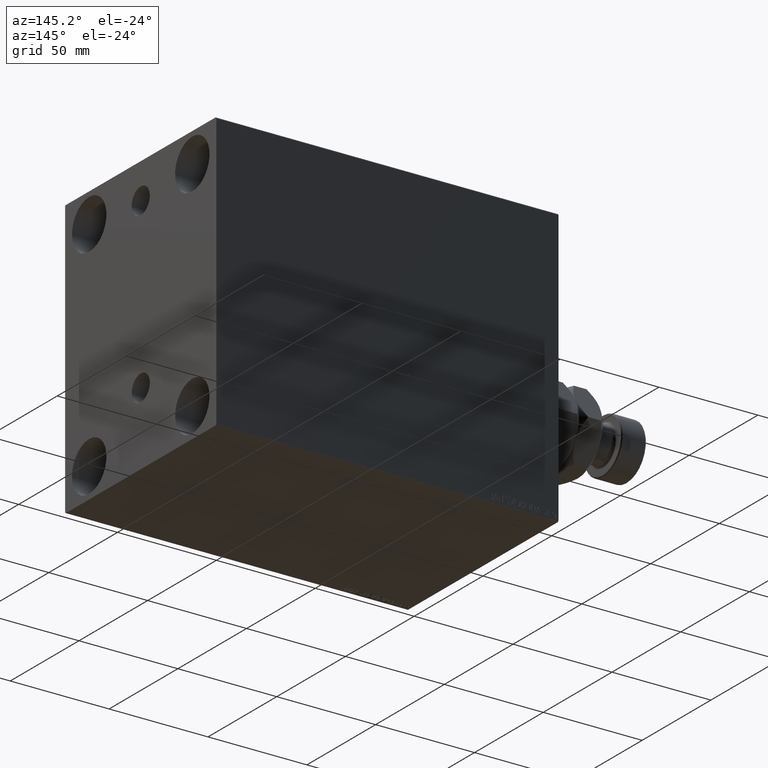
[diagram: clean part render]
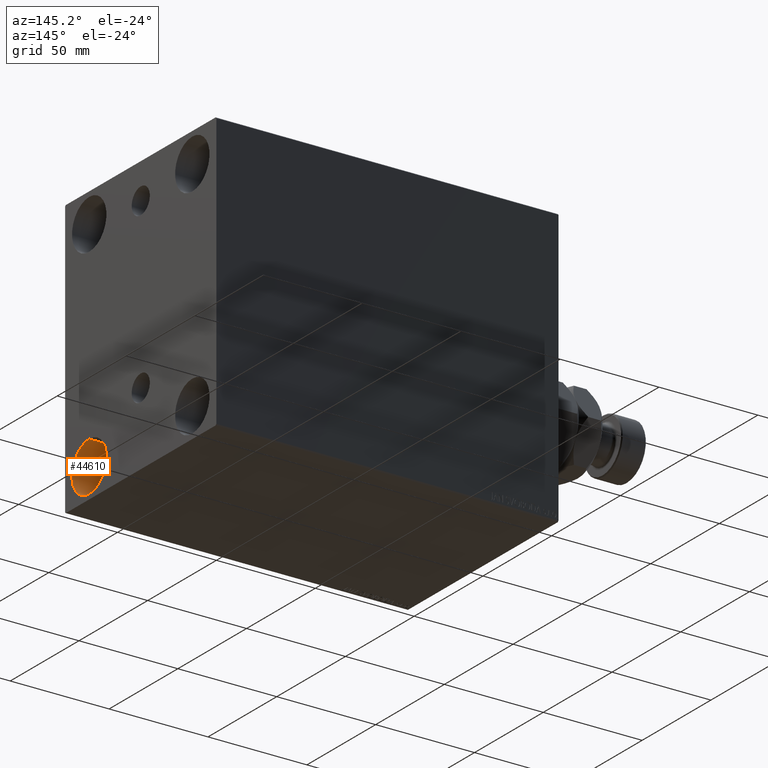
[diagram: same view with one face highlighted and labeled with its STEP entity id]
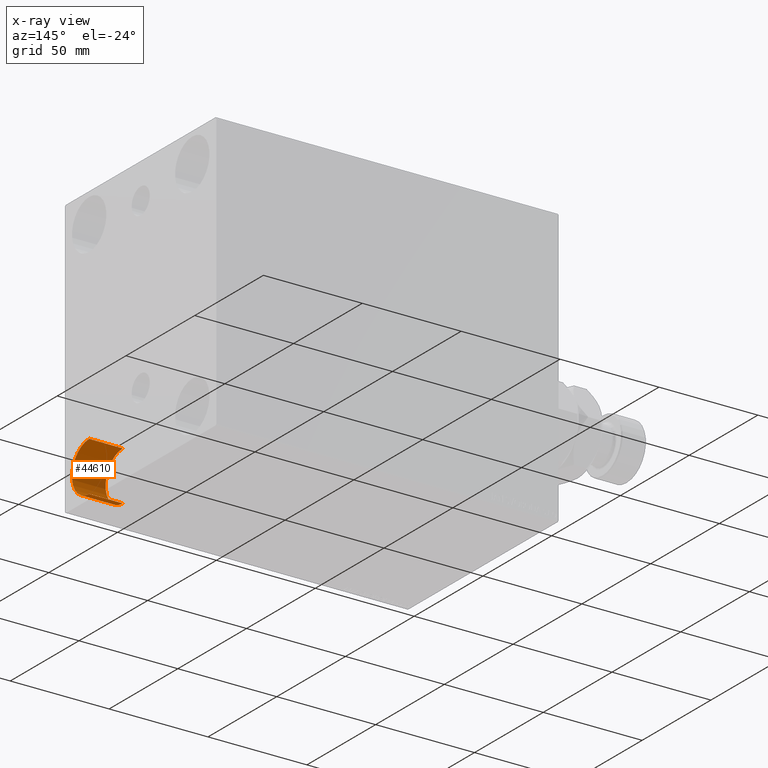
[diagram: x-ray of the same camera — body ghosted, the highlighted face saturated]
A machine part, auxiliary view. The second image highlights one B-rep face of the part: STEP entity #44610.
The next image is the same camera in x-ray: the body ghosted, the highlighted face saturated — about 0% of this face is hidden behind the body in this view.
In plain terms, the highlighted cylindrical surface (edge-blend (fillet) strip) has radius 12.5 mm, axis along (1, 0, 0).
Its self-contained STEP definition (entity closure, byte-faithful):
#627 = VERTEX_POINT ( 'NONE', #2792 ) ;
#951 = DIRECTION ( 'NONE',  ( 0.000000000000000000, 0.000000000000000000, 1.000000000000000000 ) ) ;
#2792 = CARTESIAN_POINT ( 'NONE',  ( 173.0000000000000000, -37.50000000000002132, -42.49999999999999289 ) ) ;
#3083 = ORIENTED_EDGE ( 'NONE', *, *, #14667, .F. ) ;
#4648 = FACE_OUTER_BOUND ( 'NONE', #34068, .T. ) ;
#4879 = DIRECTION ( 'NONE',  ( 1.000000000000000000, -0.000000000000000000, -0.000000000000000000 ) ) ;
#5670 = CIRCLE ( 'NONE', #32890, 12.49999999999999645 ) ;
#6473 = EDGE_CURVE ( 'NONE', #24229, #12558, #5670, .T. ) ;
#8257 = DIRECTION ( 'NONE',  ( 1.000000000000000000, -0.000000000000000000, -0.000000000000000000 ) ) ;
#11340 = CYLINDRICAL_SURFACE ( 'NONE', #30707, 12.49999999999999645 ) ;
#12558 = VERTEX_POINT ( 'NONE', #19322 ) ;
#12560 = CIRCLE ( 'NONE', #22118, 12.49999999999999645 ) ;
#13741 = VECTOR ( 'NONE', #8257, 1000.000000000000000 ) ;
#14667 = EDGE_CURVE ( 'NONE', #41788, #627, #12560, .T. ) ;
#14895 = CARTESIAN_POINT ( 'NONE',  ( 155.9999999999999716, -37.50000000000002132, -67.49999999999998579 ) ) ;
#14935 = CARTESIAN_POINT ( 'NONE',  ( 155.9999999999999716, -37.50000000000002132, -42.49999999999999289 ) ) ;
#17485 = VECTOR ( 'NONE', #17660, 1000.000000000000000 ) ;
#17660 = DIRECTION ( 'NONE',  ( 1.000000000000000000, -0.000000000000000000, -0.000000000000000000 ) ) ;
#18923 = DIRECTION ( 'NONE',  ( 0.000000000000000000, 0.000000000000000000, -1.000000000000000000 ) ) ;
#19322 = CARTESIAN_POINT ( 'NONE',  ( 155.9999999999999716, -37.50000000000002132, -42.49999999999999289 ) ) ;
#21660 = CARTESIAN_POINT ( 'NONE',  ( 173.0000000000000000, -37.50000000000002132, -54.99999999999999289 ) ) ;
#22118 = AXIS2_PLACEMENT_3D ( 'NONE', #21660, #35705, #951 ) ;
#24229 = VERTEX_POINT ( 'NONE', #34450 ) ;
#24832 = DIRECTION ( 'NONE',  ( 0.000000000000000000, 0.000000000000000000, 1.000000000000000000 ) ) ;
#28518 = DIRECTION ( 'NONE',  ( -1.000000000000000000, -0.000000000000000000, -0.000000000000000000 ) ) ;
#30229 = ORIENTED_EDGE ( 'NONE', *, *, #42041, .T. ) ;
#30707 = AXIS2_PLACEMENT_3D ( 'NONE', #35733, #4879, #18923 ) ;
#31056 = CARTESIAN_POINT ( 'NONE',  ( 155.9999999999999716, -37.50000000000002132, -54.99999999999999289 ) ) ;
#32890 = AXIS2_PLACEMENT_3D ( 'NONE', #31056, #28518, #24832 ) ;
#34068 = EDGE_LOOP ( 'NONE', ( #40467, #30229, #3083, #37466 ) ) ;
#34450 = CARTESIAN_POINT ( 'NONE',  ( 155.9999999999999716, -37.50000000000002132, -67.49999999999998579 ) ) ;
#35705 = DIRECTION ( 'NONE',  ( -1.000000000000000000, -0.000000000000000000, -0.000000000000000000 ) ) ;
#35733 = CARTESIAN_POINT ( 'NONE',  ( 155.9999999999999716, -37.50000000000002132, -54.99999999999999289 ) ) ;
#37466 = ORIENTED_EDGE ( 'NONE', *, *, #44354, .F. ) ;
#37749 = CARTESIAN_POINT ( 'NONE',  ( 173.0000000000000000, -37.50000000000002132, -67.49999999999998579 ) ) ;
#40467 = ORIENTED_EDGE ( 'NONE', *, *, #6473, .T. ) ;
#41788 = VERTEX_POINT ( 'NONE', #37749 ) ;
#42041 = EDGE_CURVE ( 'NONE', #12558, #627, #43710, .T. ) ;
#42767 = LINE ( 'NONE', #14895, #17485 ) ;
#43710 = LINE ( 'NONE', #14935, #13741 ) ;
#44354 = EDGE_CURVE ( 'NONE', #24229, #41788, #42767, .T. ) ;
#44610 = ADVANCED_FACE ( 'NONE', ( #4648 ), #11340, .F. ) ;